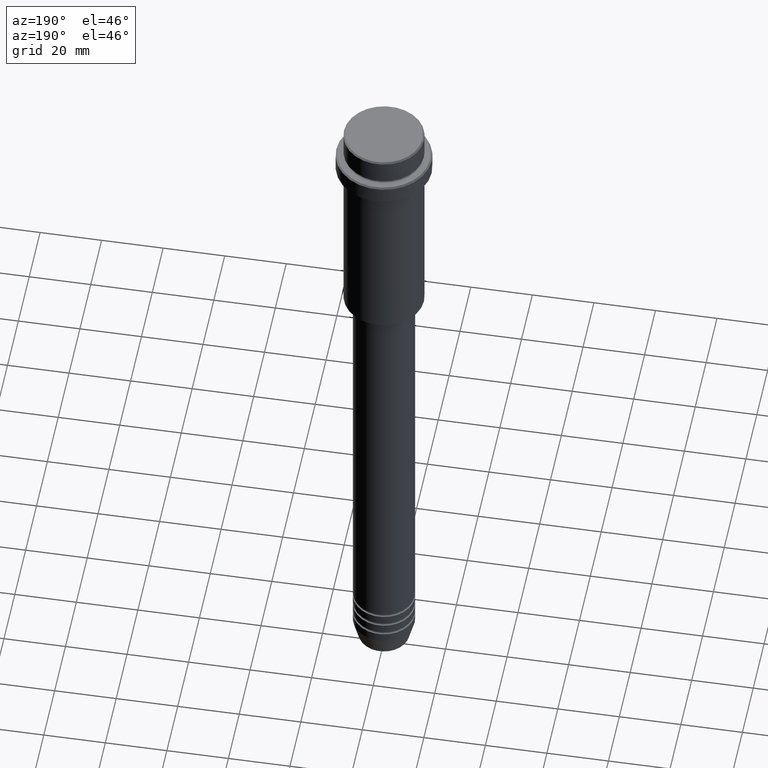
[diagram: clean part render]
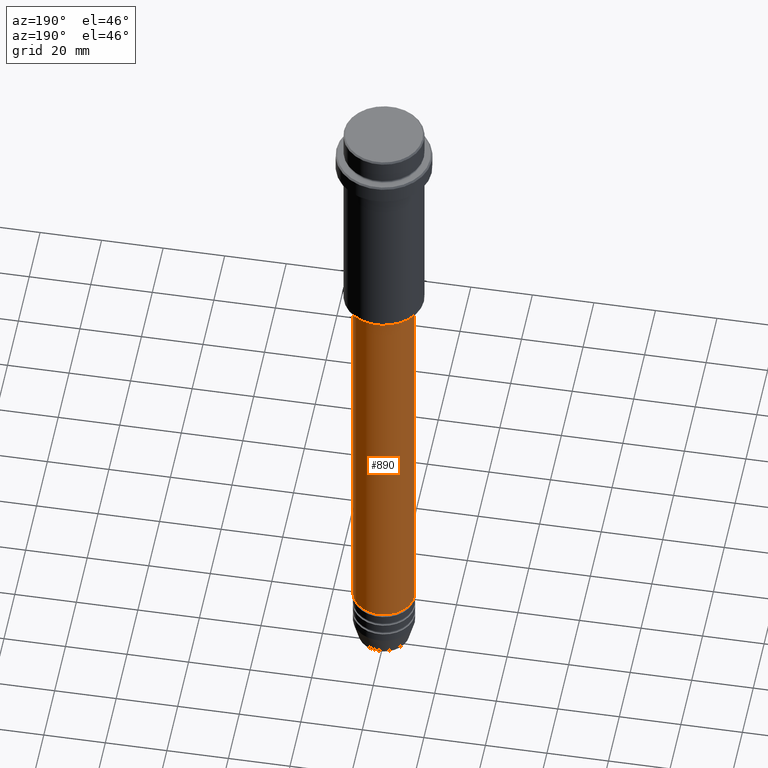
[diagram: same view with one face highlighted and labeled with its STEP entity id]
A machine part, auxiliary view. The second image highlights one B-rep face of the part: STEP entity #890.
In plain terms, the highlighted cylindrical surface (edge-blend (fillet) strip) has radius 10 mm, axis along (-0, -0, 1).
Its self-contained STEP definition (entity closure, byte-faithful):
#4 = ORIENTED_EDGE ( 'NONE', *, *, #1326, .T. ) ;
#14 = CARTESIAN_POINT ( 'NONE',  ( 0.000000000000000000, 0.000000000000000000, -76.00000000000001421 ) ) ;
#32 = DIRECTION ( 'NONE',  ( -0.000000000000000000, -0.000000000000000000, 1.000000000000000000 ) ) ;
#86 = DIRECTION ( 'NONE',  ( -0.000000000000000000, -0.000000000000000000, 1.000000000000000000 ) ) ;
#183 = AXIS2_PLACEMENT_3D ( 'NONE', #14, #545, #994 ) ;
#222 = CARTESIAN_POINT ( 'NONE',  ( 10.00000000000000000, 0.000000000000000000, -210.9999999999999432 ) ) ;
#227 = CARTESIAN_POINT ( 'NONE',  ( 10.00000000000000178, 0.000000000000000000, 0.000000000000000000 ) ) ;
#253 = VERTEX_POINT ( 'NONE', #981 ) ;
#265 = EDGE_LOOP ( 'NONE', ( #787, #4, #454, #750 ) ) ;
#387 = AXIS2_PLACEMENT_3D ( 'NONE', #1290, #86, #814 ) ;
#442 = CARTESIAN_POINT ( 'NONE',  ( -10.00000000000000178, 1.224646799147353454E-15, 0.000000000000000000 ) ) ;
#454 = ORIENTED_EDGE ( 'NONE', *, *, #676, .F. ) ;
#463 = LINE ( 'NONE', #442, #1343 ) ;
#545 = DIRECTION ( 'NONE',  ( -0.000000000000000000, -0.000000000000000000, 1.000000000000000000 ) ) ;
#552 = CYLINDRICAL_SURFACE ( 'NONE', #387, 10.00000000000000178 ) ;
#560 = EDGE_CURVE ( 'NONE', #647, #253, #1111, .T. ) ;
#647 = VERTEX_POINT ( 'NONE', #222 ) ;
#676 = EDGE_CURVE ( 'NONE', #791, #1264, #1222, .T. ) ;
#736 = DIRECTION ( 'NONE',  ( -0.000000000000000000, -0.000000000000000000, 1.000000000000000000 ) ) ;
#750 = ORIENTED_EDGE ( 'NONE', *, *, #1320, .F. ) ;
#786 = CARTESIAN_POINT ( 'NONE',  ( -10.00000000000000178, 1.224646799147353454E-15, -76.00000000000001421 ) ) ;
#787 = ORIENTED_EDGE ( 'NONE', *, *, #560, .T. ) ;
#791 = VERTEX_POINT ( 'NONE', #993 ) ;
#814 = DIRECTION ( 'NONE',  ( 1.000000000000000000, 0.000000000000000000, 0.000000000000000000 ) ) ;
#879 = AXIS2_PLACEMENT_3D ( 'NONE', #1292, #736, #1404 ) ;
#888 = DIRECTION ( 'NONE',  ( -0.000000000000000000, -0.000000000000000000, 1.000000000000000000 ) ) ;
#890 = ADVANCED_FACE ( 'NONE', ( #1090 ), #552, .T. ) ;
#981 = CARTESIAN_POINT ( 'NONE',  ( -10.00000000000000000, 1.224646799147353256E-15, -210.9999999999999432 ) ) ;
#993 = CARTESIAN_POINT ( 'NONE',  ( 10.00000000000000178, 0.000000000000000000, -76.00000000000001421 ) ) ;
#994 = DIRECTION ( 'NONE',  ( 1.000000000000000000, 0.000000000000000000, 0.000000000000000000 ) ) ;
#1020 = LINE ( 'NONE', #227, #1121 ) ;
#1090 = FACE_OUTER_BOUND ( 'NONE', #265, .T. ) ;
#1111 = CIRCLE ( 'NONE', #879, 10.00000000000000000 ) ;
#1121 = VECTOR ( 'NONE', #32, 1000.000000000000000 ) ;
#1222 = CIRCLE ( 'NONE', #183, 10.00000000000000178 ) ;
#1264 = VERTEX_POINT ( 'NONE', #786 ) ;
#1290 = CARTESIAN_POINT ( 'NONE',  ( 0.000000000000000000, 0.000000000000000000, 0.000000000000000000 ) ) ;
#1292 = CARTESIAN_POINT ( 'NONE',  ( 0.000000000000000000, 0.000000000000000000, -210.9999999999999432 ) ) ;
#1320 = EDGE_CURVE ( 'NONE', #647, #791, #1020, .T. ) ;
#1326 = EDGE_CURVE ( 'NONE', #253, #1264, #463, .T. ) ;
#1343 = VECTOR ( 'NONE', #888, 1000.000000000000000 ) ;
#1404 = DIRECTION ( 'NONE',  ( 1.000000000000000000, 0.000000000000000000, 0.000000000000000000 ) ) ;